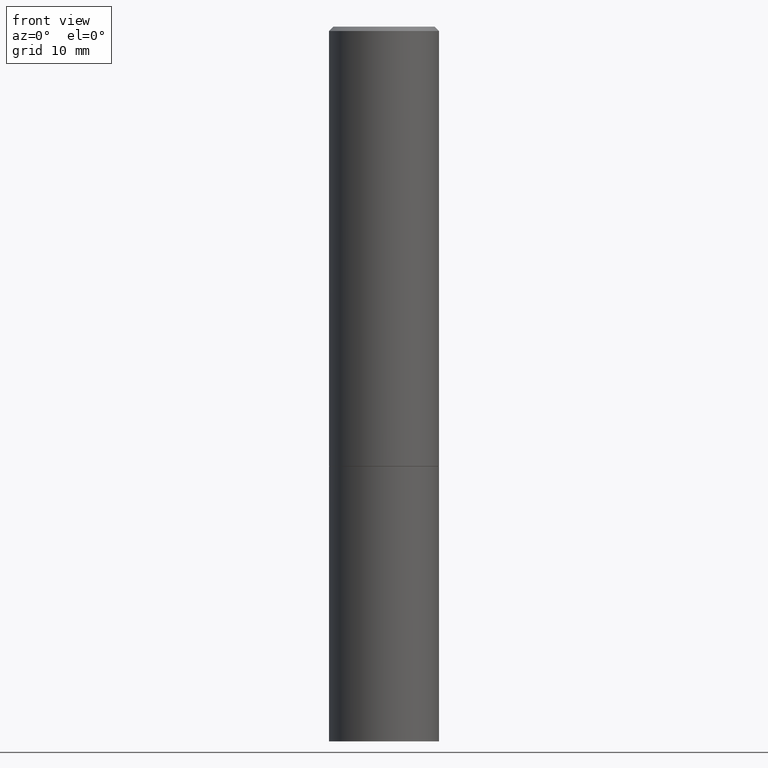
[diagram: clean part render]
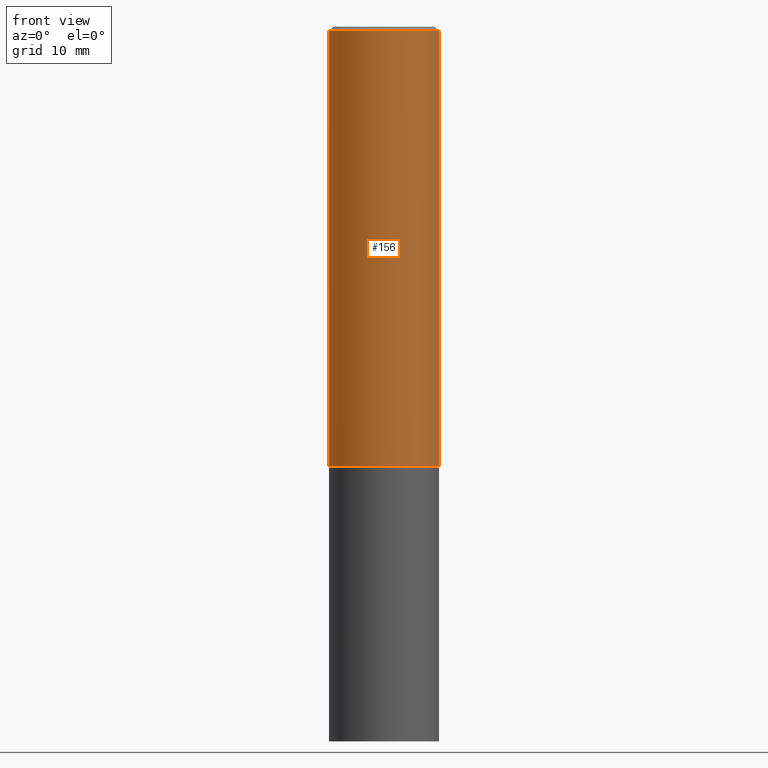
[diagram: same view with one face highlighted and labeled with its STEP entity id]
A machine part, front view. The second image highlights one B-rep face of the part: STEP entity #156.
In plain terms, the highlighted cylindrical surface (partial cylindrical patch) has radius 6.35 mm, axis along (-0, 0, 1).
Its self-contained STEP definition (entity closure, byte-faithful):
#3 = CARTESIAN_POINT ( 'NONE',  ( 0.2499999999999998057, -1.784954126219744611E-15, -0.02000000000000006287 ) ) ;
#8 = CARTESIAN_POINT ( 'NONE',  ( 0.2499999999999999167, -1.745740669421566283E-15, 1.219044193948983668E-29 ) ) ;
#10 = EDGE_LOOP ( 'NONE', ( #321, #339, #132, #264 ) ) ;
#19 = AXIS2_PLACEMENT_3D ( 'NONE', #155, #130, #299 ) ;
#50 = CARTESIAN_POINT ( 'NONE',  ( 0.2500000000000000555, -8.725211865769014047E-15, -1.998999999999999888 ) ) ;
#69 = EDGE_CURVE ( 'NONE', #243, #266, #360, .T. ) ;
#81 = VECTOR ( 'NONE', #300, 39.37007874015748143 ) ;
#117 = DIRECTION ( 'NONE',  ( -2.445468806185136597E-29, 3.491481338843145583E-15, 1.000000000000000000 ) ) ;
#130 = DIRECTION ( 'NONE',  ( -2.445468806185136597E-29, 3.491481338843145583E-15, 1.000000000000000000 ) ) ;
#132 = ORIENTED_EDGE ( 'NONE', *, *, #295, .T. ) ;
#135 = AXIS2_PLACEMENT_3D ( 'NONE', #301, #276, #140 ) ;
#140 = DIRECTION ( 'NONE',  ( 1.000000000000000000, -6.982962677686265133E-15, 0.000000000000000000 ) ) ;
#148 = DIRECTION ( 'NONE',  ( -2.445468806185136877E-29, 3.491481338843145188E-15, 1.000000000000000000 ) ) ;
#149 = VERTEX_POINT ( 'NONE', #364 ) ;
#155 = CARTESIAN_POINT ( 'NONE',  ( 4.890937612370288923E-31, -6.982962677686312563E-17, -0.02000000000000006287 ) ) ;
#156 = ADVANCED_FACE ( 'NONE', ( #314 ), #174, .T. ) ;
#174 = CYLINDRICAL_SURFACE ( 'NONE', #219, 0.2499999999999999167 ) ;
#219 = AXIS2_PLACEMENT_3D ( 'NONE', #285, #117, #239 ) ;
#223 = VECTOR ( 'NONE', #148, 39.37007874015748143 ) ;
#225 = EDGE_CURVE ( 'NONE', #243, #149, #246, .T. ) ;
#239 = DIRECTION ( 'NONE',  ( 1.000000000000000000, -6.982962677686267499E-15, 4.876176775795936353E-29 ) ) ;
#242 = LINE ( 'NONE', #8, #81 ) ;
#243 = VERTEX_POINT ( 'NONE', #286 ) ;
#246 = LINE ( 'NONE', #353, #223 ) ;
#264 = ORIENTED_EDGE ( 'NONE', *, *, #311, .F. ) ;
#266 = VERTEX_POINT ( 'NONE', #50 ) ;
#276 = DIRECTION ( 'NONE',  ( -2.445468806185136597E-29, 3.491481338843145583E-15, 1.000000000000000000 ) ) ;
#285 = CARTESIAN_POINT ( 'NONE',  ( 0.000000000000000000, 0.000000000000000000, 0.000000000000000000 ) ) ;
#286 = CARTESIAN_POINT ( 'NONE',  ( -0.2500000000000000555, -1.748293572161903489E-15, -1.998999999999999888 ) ) ;
#294 = VERTEX_POINT ( 'NONE', #3 ) ;
#295 = EDGE_CURVE ( 'NONE', #266, #294, #242, .T. ) ;
#299 = DIRECTION ( 'NONE',  ( 1.000000000000000000, -6.982962677686266711E-15, 0.000000000000000000 ) ) ;
#300 = DIRECTION ( 'NONE',  ( -2.445468806185136877E-29, 3.491481338843145188E-15, 1.000000000000000000 ) ) ;
#301 = CARTESIAN_POINT ( 'NONE',  ( 4.888492143564087591E-29, -6.979471196347447369E-15, -1.998999999999999888 ) ) ;
#311 = EDGE_CURVE ( 'NONE', #149, #294, #335, .T. ) ;
#314 = FACE_OUTER_BOUND ( 'NONE', #10, .T. ) ;
#321 = ORIENTED_EDGE ( 'NONE', *, *, #225, .F. ) ;
#335 = CIRCLE ( 'NONE', #19, 0.2499999999999998057 ) ;
#339 = ORIENTED_EDGE ( 'NONE', *, *, #69, .T. ) ;
#353 = CARTESIAN_POINT ( 'NONE',  ( -0.2499999999999999167, 1.776356839400249873E-15, -1.229733772563726165E-29 ) ) ;
#360 = CIRCLE ( 'NONE', #135, 0.2500000000000000555 ) ;
#364 = CARTESIAN_POINT ( 'NONE',  ( -0.2499999999999998057, 1.675911042644702196E-15, -0.02000000000000006287 ) ) ;